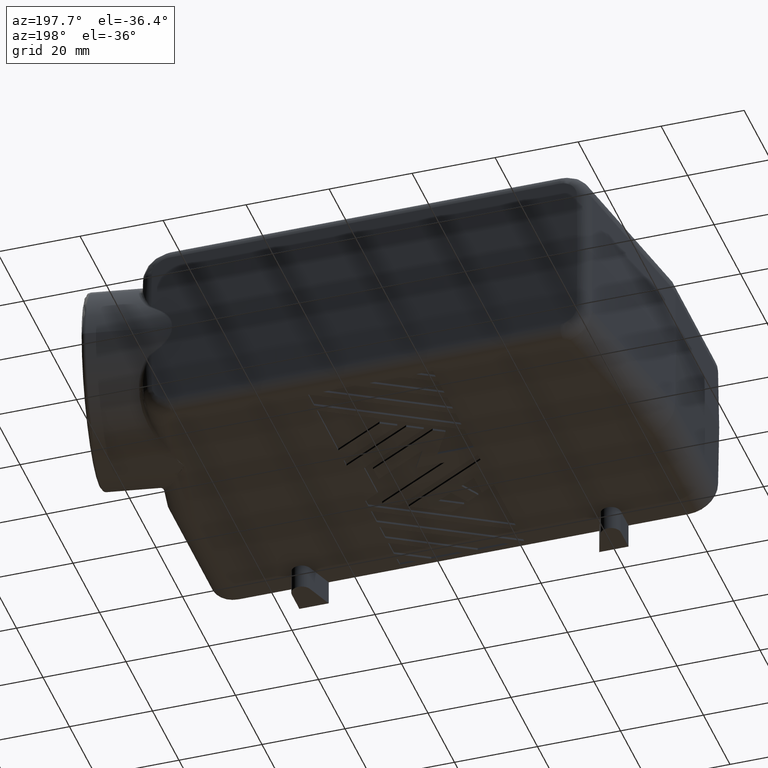
[diagram: clean part render]
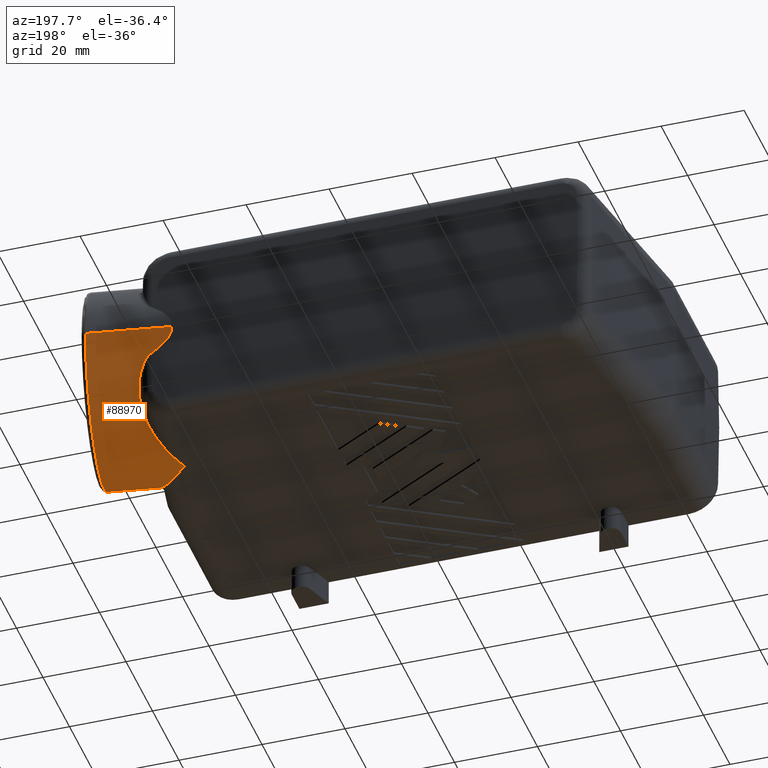
[diagram: same view with one face highlighted and labeled with its STEP entity id]
A machine part, auxiliary view. The second image highlights one B-rep face of the part: STEP entity #88970.
In plain terms, the highlighted cylindrical surface (partial cylindrical patch) has radius 23 mm, axis along (0.9848, 0.1736, -0).
Its self-contained STEP definition (entity closure, byte-faithful):
#2460=CARTESIAN_POINT('',(-53.2589778486338,76.9878897211014,23.));
#2470=VERTEX_POINT('',#2460);
#13630=CARTESIAN_POINT('',(-68.7677861782095,103.077323141614,
-1.77621654271337E-14));
#13640=VERTEX_POINT('',#13630);
#13850=CARTESIAN_POINT('',(-76.7556023508883,57.7761665030523,
-1.77621654271337E-14));
#13860=VERTEX_POINT('',#13850);
#13890=CARTESIAN_POINT('',(-72.7616942645489,80.4267448223331,
-1.77621654271337E-14));
#13900=DIRECTION('',(-0.984807753012208,0.17364817766693,
-1.40296686880216E-18));
#13910=DIRECTION('',(0.17364817766693,0.984807753012208,0.));
#13920=AXIS2_PLACEMENT_3D('',#13890,#13900,#13910);
#13930=CIRCLE('',#13920,23.);
#15860=CARTESIAN_POINT('',(-58.0076909270538,96.2610731268832,
14.1197674051149));
#15870=VERTEX_POINT('',#15860);
#15960=CARTESIAN_POINT('',(-58.1803025286342,95.1408176819553,
15.4671353611935));
#15970=VERTEX_POINT('',#15960);
#16000=CARTESIAN_POINT('',(-58.1803025286342,95.1408176819553,
15.4671353611935));
#16010=CARTESIAN_POINT('',(-58.1755556640412,95.1712988825403,
15.4331913327418));
#16020=CARTESIAN_POINT('',(-58.1708280899382,95.2016803336105,
15.3991551228733));
#16030=CARTESIAN_POINT('',(-58.1329420516652,95.4453477368436,
15.1245344146121));
#16040=CARTESIAN_POINT('',(-58.1007185510835,95.6538046660801,
14.8794362819045));
#16050=CARTESIAN_POINT('',(-58.0694727912256,95.8571834528169,
14.6298868183711));
#16060=CARTESIAN_POINT('',(-58.0528538532126,95.9653561925843,
14.497156902872));
#16070=CARTESIAN_POINT('',(-58.0365213160347,96.0720285390109,
14.363246070703));
#16080=CARTESIAN_POINT('',(-58.0161950444846,96.2052531721592,
14.1921277968182));
#16090=CARTESIAN_POINT('',(-58.0119329235728,96.2332161759278,
14.1559900026203));
#16100=CARTESIAN_POINT('',(-58.0076909270538,96.2610731268832,
14.1197674051149));
#16110=B_SPLINE_CURVE_WITH_KNOTS('',3,(#16000,#16010,#16020,#16030,
#16040,#16050,#16060,#16070,#16080,#16090,#16100),.UNSPECIFIED.,.F.,.F.,
(4,2,3,2,4),(0.,0.140603038316231,1.13140705707454,1.6583940993297,
1.79906701491413),.UNSPECIFIED.);
#16120=EDGE_CURVE('',#15970,#15870,#16110,.T.);
#20020=CARTESIAN_POINT('',(-49.134466960062,99.6154392425925,
-1.49175079682811E-14));
#20030=VERTEX_POINT('',#20020);
#20760=CARTESIAN_POINT('',(-54.2137318525131,99.5370902496345,
6.572787771043));
#20770=VERTEX_POINT('',#20760);
#20800=CARTESIAN_POINT('',(-54.2137318525131,99.5370902496345,
6.572787771043));
#20810=CARTESIAN_POINT('',(-54.2045951508678,99.5371197658751,
6.567369971941));
#20820=CARTESIAN_POINT('',(-54.195461626037,99.5371492818426,
6.56194693044178));
#20830=CARTESIAN_POINT('',(-54.1663703294016,99.5372440816092,
6.5446471748836));
#20840=CARTESIAN_POINT('',(-54.1464258071583,99.5373097251428,
6.53274953082441));
#20850=CARTESIAN_POINT('',(-53.9239454434969,99.5380493262839,
6.39961122005311));
#20860=CARTESIAN_POINT('',(-53.7231781118138,99.5387847841503,
6.27557356441709));
#20870=CARTESIAN_POINT('',(-53.425193479884,99.5399937351857,
6.08475802342332));
#20880=CARTESIAN_POINT('',(-53.326442088518,99.5404141569782,
6.0203905361106));
#20890=CARTESIAN_POINT('',(-53.1301207583232,99.541292568968,
5.8899882589827));
#20900=CARTESIAN_POINT('',(-53.0325554197674,99.5417505269774,
5.823957189201));
#20910=CARTESIAN_POINT('',(-52.8088660352698,99.5428538971029,
5.66951121064567));
#20920=CARTESIAN_POINT('',(-52.6831857527509,99.5435136550333,
5.58045661419578));
#20930=CARTESIAN_POINT('',(-52.4344002077649,99.5449082318631,
5.39910374596789));
#20940=CARTESIAN_POINT('',(-52.3112933012332,99.5456430012213,
5.30680763773336));
#20950=CARTESIAN_POINT('',(-52.068042608875,99.5471948607132,
5.11871478289614));
#20960=CARTESIAN_POINT('',(-51.9479009009342,99.5480118516551,
5.02292456005918));
#20970=CARTESIAN_POINT('',(-51.7110169045742,99.5497365655707,
4.8275403047912));
#20980=CARTESIAN_POINT('',(-51.5942782709468,99.5506441703952,
4.72795452456326));
#20990=CARTESIAN_POINT('',(-51.3650038993593,99.5525574224133,
4.52488886259978));
#21000=CARTESIAN_POINT('',(-51.2524650655694,99.5535626844292,
4.42142975616982));
#21010=CARTESIAN_POINT('',(-51.0319827825058,99.5556834648628,
4.2100787995806));
#21020=CARTESIAN_POINT('',(-50.9240469832142,99.5567987579748,
4.10220296379059));
#21030=CARTESIAN_POINT('',(-50.7136210421186,99.5591508517711,
3.88172187312598));
#21040=CARTESIAN_POINT('',(-50.6111398241775,99.5603872808129,
3.76914152575784));
#21050=CARTESIAN_POINT('',(-50.4125547586954,99.5629948205667,
3.53887795607299));
#21060=CARTESIAN_POINT('',(-50.3164752977206,99.5643653330109,
3.42123892039751));
#21070=CARTESIAN_POINT('',(-50.1583281263639,99.5668405242984,
3.21505541861682));
#21080=CARTESIAN_POINT('',(-50.094470178167,99.567907572238,
3.12793331498348));
#21090=CARTESIAN_POINT('',(-49.9710856392908,99.5701219788586,
2.95086201432337));
#21100=CARTESIAN_POINT('',(-49.9115750451986,99.5712689187774,
2.86094330791857));
#21110=CARTESIAN_POINT('',(-49.797471486379,99.5736471720079,
2.67828567027707));
#21120=CARTESIAN_POINT('',(-49.7428899397325,99.574878008236,
2.58557869782098));
#21130=CARTESIAN_POINT('',(-49.6392295836796,99.5774284800035,
2.39733013518454));
#21140=CARTESIAN_POINT('',(-49.5901665551613,99.5787475191213,
2.30182911318935));
#21150=CARTESIAN_POINT('',(-49.4983614037783,99.581472450942,
2.10843777090661));
#21160=CARTESIAN_POINT('',(-49.4556150523486,99.582877217512,
2.010610159487));
#21170=CARTESIAN_POINT('',(-49.3768884718914,99.5857794765713,
1.81241137948107));
#21180=CARTESIAN_POINT('',(-49.3409279948156,99.5872759601092,
1.7121060040951));
#21190=CARTESIAN_POINT('',(-49.2764288467397,99.5903604625717,
1.50928747584064));
#21200=CARTESIAN_POINT('',(-49.2479069216512,99.5919471676321,
1.40685633554321));
#21210=CARTESIAN_POINT('',(-49.198840487644,99.5952096603309,
1.20015343075822));
#21220=CARTESIAN_POINT('',(-49.1783144610978,99.5968838547437,
1.09598037219582));
#21230=CARTESIAN_POINT('',(-49.150451739032,99.5998153206579,
0.91687382577241));
#21240=CARTESIAN_POINT('',(-49.1410216377573,99.601050659057,
0.842340746140659));
#21250=CARTESIAN_POINT('',(-49.1265038837736,99.6035599445454,
0.692838128247092));
#21260=CARTESIAN_POINT('',(-49.1214199063237,99.604833139234,
0.61791314112667));
#21270=CARTESIAN_POINT('',(-49.1156576607495,99.6074143996566,
0.467866392749873));
#21280=CARTESIAN_POINT('',(-49.1149805899223,99.6087217299498,
0.392787200682886));
#21290=CARTESIAN_POINT('',(-49.1180400926312,99.61136718968,
0.242668267595216));
#21300=CARTESIAN_POINT('',(-49.1217760116165,99.6127045682629,
0.167671221735505));
#21310=CARTESIAN_POINT('',(-49.1286086776652,99.614263435047,
0.0812652065582647));
#21320=CARTESIAN_POINT('',(-49.1295742500518,99.6144721738511,
0.0697157545097839));
#21330=CARTESIAN_POINT('',(-49.1312829410085,99.6148232493122,
0.0503254382974118));
#21340=CARTESIAN_POINT('',(-49.1317725853841,99.6149300148373,
0.0406170660819623));
#21350=CARTESIAN_POINT('',(-49.1328856857824,99.6151536152214,
0.0202887279797526));
#21360=CARTESIAN_POINT('',(-49.13350915834,99.6152703563067,
0.00966876196691699));
#21370=CARTESIAN_POINT('',(-49.134466960062,99.6154392425925,
5.65808548175789E-14));
#21380=B_SPLINE_CURVE_WITH_KNOTS('',3,(#20800,#20810,#20820,#20830,
#20840,#20850,#20860,#20870,#20880,#20890,#20900,#20910,#20920,#20930,
#20940,#20950,#20960,#20970,#20980,#20990,#21000,#21010,#21020,#21030,
#21040,#21050,#21060,#21070,#21080,#21090,#21100,#21110,#21120,#21130,
#21140,#21150,#21160,#21170,#21180,#21190,#21200,#21210,#21220,#21230,
#21240,#21250,#21260,#21270,#21280,#21290,#21300,#21310,#21320,#21330,
#21340,#21350,#21360,#21370),.UNSPECIFIED.,.F.,.F.,(4,2,2,2,2,2,2,2,2,2,
2,2,2,2,2,2,2,2,2,2,2,2,2,2,2,2,2,2,4),(0.,0.0320664803184047,
0.102175493354466,0.814800766528805,1.17093527256056,1.52694836930753,
1.9926121511299,2.45801876153764,2.92306928252492,3.38779178680959,
3.85111516193131,4.31401824882963,4.77625569942809,5.2379561072481,
5.56667529130568,5.89508142446432,6.22304420175636,6.55066900062438,
6.8767521950454,7.20251474911699,7.52784604893445,7.85294013350769,
8.08310527471993,8.31321908078353,8.54330734315265,8.77340867089052,
8.80892625608746,8.83306334050749,8.85720042492753),.UNSPECIFIED.);
#21390=EDGE_CURVE('',#20770,#20030,#21380,.T.);
#25150=CARTESIAN_POINT('',(-54.2137318525131,99.5370902496345,
6.572787771043));
#25160=CARTESIAN_POINT('',(-54.2237464428965,99.5370578744527,
6.57872620836337));
#25170=CARTESIAN_POINT('',(-54.233721513801,99.5369866990914,
6.58476094256286));
#25180=CARTESIAN_POINT('',(-54.2476941228409,99.5368333880463,
6.59337773746341));
#25190=CARTESIAN_POINT('',(-54.2517593894687,99.5367823348004,
6.59590441595224));
#25200=CARTESIAN_POINT('',(-54.2920971737428,99.5362125426558,
6.62116745704355));
#25210=CARTESIAN_POINT('',(-54.3274622063541,99.5352028610683,
6.64486531757414));
#25220=CARTESIAN_POINT('',(-54.3970866595034,99.5322990692841,
6.69420622960896));
#25230=CARTESIAN_POINT('',(-54.4312740377867,99.5303952681952,
6.71983557401372));
#25240=CARTESIAN_POINT('',(-54.4983902470726,99.5257972399824,
6.77258185081122));
#25250=CARTESIAN_POINT('',(-54.5312655564636,99.5231015033806,
6.79967150151992));
#25260=CARTESIAN_POINT('',(-54.5958721007407,99.5169991008277,
6.85509525801745));
#25270=CARTESIAN_POINT('',(-54.6275585194362,99.5135922106855,
6.88340318865219));
#25280=CARTESIAN_POINT('',(-54.689870943836,99.5061355617444,
6.94104866946194));
#25290=CARTESIAN_POINT('',(-54.7204544905477,99.5020877504459,
6.97035527718056));
#25300=CARTESIAN_POINT('',(-54.7746029665499,99.4942777246913,
7.02385683517983));
#25310=CARTESIAN_POINT('',(-54.7983191015022,99.4906235050615,
7.04787575527019));
#25320=CARTESIAN_POINT('',(-54.8451834271883,99.4829629936062,
7.09640621205847));
#25330=CARTESIAN_POINT('',(-54.8683285139652,99.4789556844056,
7.12091826843099));
#25340=CARTESIAN_POINT('',(-54.9369301655001,99.4664438459224,
7.19506295312955));
#25350=CARTESIAN_POINT('',(-54.9815550202648,99.4574456945391,
7.24531214098616));
#25360=CARTESIAN_POINT('',(-55.0688961712048,99.4382765767953,
7.34708997636612));
#25370=CARTESIAN_POINT('',(-55.111590151141,99.4281052320199,
7.39860489816682));
#25380=CARTESIAN_POINT('',(-55.1953451719877,99.4066804366091,
7.50270264623156));
#25390=CARTESIAN_POINT('',(-55.2363623015525,99.3954336399605,
7.55524093755316));
#25400=CARTESIAN_POINT('',(-55.3170029042188,99.3719186044883,
7.66125678949536));
#25410=CARTESIAN_POINT('',(-55.3565914215697,99.3596548865802,
7.71469984381721));
#25420=CARTESIAN_POINT('',(-55.4344553182623,99.3341824838206,
7.82228427542487));
#25430=CARTESIAN_POINT('',(-55.4727059048873,99.3209792280932,
7.87639663652756));
#25440=CARTESIAN_POINT('',(-55.5480181153179,99.2936749569978,
7.98519717081747));
#25450=CARTESIAN_POINT('',(-55.5850604769652,99.2795787267244,
8.03986156968632));
#25460=CARTESIAN_POINT('',(-55.6580532193639,99.2505276968038,
8.14966109619156));
#25470=CARTESIAN_POINT('',(-55.6939886034986,99.2355772101535,
8.20477657074127));
#25480=CARTESIAN_POINT('',(-55.7649996772033,99.2047833712306,
8.31563005997756));
#25490=CARTESIAN_POINT('',(-55.8000590669351,99.188940408912,
8.37135314727601));
#25500=CARTESIAN_POINT('',(-55.8692293882984,99.1564442938954,
8.48312389493579));
#25510=CARTESIAN_POINT('',(-55.9033305351734,99.1397946775188,
8.53915743774379));
#25520=CARTESIAN_POINT('',(-55.9706426189155,99.105704753159,
8.65149436915301));
#25530=CARTESIAN_POINT('',(-56.0038454416215,99.0882676773484,
8.70778555547642));
#25540=CARTESIAN_POINT('',(-56.0694072950024,99.0526193074585,
8.82058906131808));
#25550=CARTESIAN_POINT('',(-56.1017595879111,99.0344110048478,
8.87709077909746));
#25560=CARTESIAN_POINT('',(-56.1656634211565,98.9972307062723,
8.99028246150006));
#25570=CARTESIAN_POINT('',(-56.197209172755,98.9782613889506,
9.04696313677835));
#25580=CARTESIAN_POINT('',(-56.2595271046503,98.9395717832241,
9.16047042255246));
#25590=CARTESIAN_POINT('',(-56.2902983834804,98.9198514933021,
9.21729614816214));
#25600=CARTESIAN_POINT('',(-56.3814749527106,98.8595867287282,
9.38791830960036));
#25610=CARTESIAN_POINT('',(-56.4407556341413,98.8179312927855,
9.50187891227912));
#25620=CARTESIAN_POINT('',(-56.4986092488757,98.7748184283313,
9.61595877381155));
#25630=CARTESIAN_POINT('',(-56.5471538284539,98.7386427133143,
9.71168241946176));
#25640=CARTESIAN_POINT('',(-56.5946772473931,98.7014525171326,
9.80745961777733));
#25650=CARTESIAN_POINT('',(-56.6877779443977,98.6250251137175,
9.99911656191115));
#25660=CARTESIAN_POINT('',(-56.7333403299056,98.5857998470985,
10.0949662413424));
#25670=CARTESIAN_POINT('',(-56.8225347380523,98.5053158069968,
10.2866733331958));
#25680=CARTESIAN_POINT('',(-56.8661560245958,98.4640671849254,
10.3825073513289));
#25690=CARTESIAN_POINT('',(-56.951465511865,98.3795417575417,
10.5741056925728));
#25700=CARTESIAN_POINT('',(-56.9931441728862,98.3362754913567,
10.669847548952));
#25710=CARTESIAN_POINT('',(-57.0924290882428,98.2282609382488,
10.9032265574));
#25720=CARTESIAN_POINT('',(-57.1489794554674,98.162440813192,
11.0407619927098));
#25730=CARTESIAN_POINT('',(-57.2579067151371,98.026588094167,
11.3153607675506));
#25740=CARTESIAN_POINT('',(-57.3102641834495,97.9565873344877,
11.4523673346738));
#25750=CARTESIAN_POINT('',(-57.4106062355354,97.8123634795238,
11.7257194590359));
#25760=CARTESIAN_POINT('',(-57.4585734539529,97.7381767955495,
11.8620055615176));
#25770=CARTESIAN_POINT('',(-57.5498761663186,97.5855651340981,
12.1337401763622));
#25780=CARTESIAN_POINT('',(-57.5931965517253,97.5071805185981,
12.2691273528273));
#25790=CARTESIAN_POINT('',(-57.6748422001189,97.3462409727198,
12.5387477259964));
#25800=CARTESIAN_POINT('',(-57.7131660150266,97.2637201402572,
12.6729417990719));
#25810=CARTESIAN_POINT('',(-57.7666521319809,97.1367575172289,
12.873321459971));
#25820=CARTESIAN_POINT('',(-57.7838087072385,97.0939233311724,
12.9399384258006));
#25830=CARTESIAN_POINT('',(-57.8167255893021,97.007217440822,
13.0728105155595));
#25840=CARTESIAN_POINT('',(-57.8324873387054,96.9633468623835,
13.1390659445235));
#25850=CARTESIAN_POINT('',(-57.8625579055652,96.8745682938342,
13.2711932086471));
#25860=CARTESIAN_POINT('',(-57.8768661223608,96.829668176021,
13.3370555217855));
#25870=CARTESIAN_POINT('',(-57.9039693886545,96.7388289006954,
13.4683780086027));
#25880=CARTESIAN_POINT('',(-57.9167638314353,96.6928980704717,
13.5338280905411));
#25890=CARTESIAN_POINT('',(-57.9407712147134,96.6000065508381,
13.6642921648335));
#25900=CARTESIAN_POINT('',(-57.9519838809345,96.5530549315781,
13.7292955106995));
#25910=CARTESIAN_POINT('',(-57.9727552728424,96.4581313215432,
13.8588332153876));
#25920=CARTESIAN_POINT('',(-57.982313050189,96.4101746463164,
13.9233490349929));
#25930=CARTESIAN_POINT('',(-57.9969831685328,96.3283844119499,
14.0318109448677));
#25940=CARTESIAN_POINT('',(-58.0025490146665,96.2948400817528,
14.075859996653));
#25950=CARTESIAN_POINT('',(-58.0076909270538,96.2610731268832,
14.1197674051149));
#25960=B_SPLINE_CURVE_WITH_KNOTS('',3,(#25150,#25160,#25170,#25180,
#25190,#25200,#25210,#25220,#25230,#25240,#25250,#25260,#25270,#25280,
#25290,#25300,#25310,#25320,#25330,#25340,#25350,#25360,#25370,#25380,
#25390,#25400,#25410,#25420,#25430,#25440,#25450,#25460,#25470,#25480,
#25490,#25500,#25510,#25520,#25530,#25540,#25550,#25560,#25570,#25580,
#25590,#25600,#25610,#25620,#25630,#25640,#25650,#25660,#25670,#25680,
#25690,#25700,#25710,#25720,#25730,#25740,#25750,#25760,#25770,#25780,
#25790,#25800,#25810,#25820,#25830,#25840,#25850,#25860,#25870,#25880,
#25890,#25900,#25910,#25920,#25930,#25940,#25950),.UNSPECIFIED.,.F.,.F.,
(4,2,2,2,2,2,2,2,2,2,2,2,2,2,2,2,2,2,2,2,2,2,2,3,2,2,2,2,2,2,2,2,2,2,2,2
,2,2,2,4),(0.,0.0318983864812067,0.0450369668041404,0.162613138624689,
0.281769521064327,0.401603755287638,0.522060285923196,0.643004674924544,
0.739920174908583,0.837068138177919,1.03197403981272,1.22760375793058,
1.42375514912843,1.62062777490049,1.81784041243273,2.01534501181894,
2.21307542392519,2.41182611413815,2.61072801399276,2.80975681805784,
3.00888310113035,3.20811209485063,3.40739897940175,3.80609149411399,
4.14114916501956,4.47619422734725,4.81118078604414,5.14606502538042,
5.62790231249951,6.10933817612035,6.59024017711442,7.07053618812111,
7.54967764498166,7.78894309946179,8.02799296107081,8.26677040409999,
8.50530343493725,8.74357094157551,8.98156275711322,9.14491251832902),
.UNSPECIFIED.);
#25970=EDGE_CURVE('',#20770,#15870,#25960,.T.);
#34550=CARTESIAN_POINT('',(-58.1803025286342,95.1408176819553,
15.4671353611935));
#34560=CARTESIAN_POINT('',(-58.1852148420184,95.1092741732039,
15.5022623845053));
#34570=CARTESIAN_POINT('',(-58.1899001428949,95.0775762389617,
15.5372948205844));
#34580=CARTESIAN_POINT('',(-58.2000601026074,95.0050550378824,
15.6168431720516));
#34590=CARTESIAN_POINT('',(-58.2053930863999,94.9641373401398,
15.6612960201117));
#34600=CARTESIAN_POINT('',(-58.2200809966801,94.8426527520402,
15.7920222640847));
#34610=CARTESIAN_POINT('',(-58.2284241164954,94.7614732603526,
15.8777661904556));
#34620=CARTESIAN_POINT('',(-58.2425007863698,94.5974222042423,
16.0478914955129));
#34630=CARTESIAN_POINT('',(-58.2482304795286,94.5145623041902,
16.1322575683054));
#34640=CARTESIAN_POINT('',(-58.2571902742224,94.3472371535759,
16.2995712854569));
#34650=CARTESIAN_POINT('',(-58.2604172315178,94.2627832026899,
16.3825046834562));
#34660=CARTESIAN_POINT('',(-58.2644796049672,94.0923267950343,
16.5469309230794));
#34670=CARTESIAN_POINT('',(-58.265311764359,94.0063348009791,
16.6284100596493));
#34680=CARTESIAN_POINT('',(-58.2646870199404,93.8329021536793,
16.7898662510548));
#34690=CARTESIAN_POINT('',(-58.26322801335,93.7454719407884,
16.8698309358646));
#34700=CARTESIAN_POINT('',(-58.2581218264049,93.5692340087393,
17.0282287948454));
#34710=CARTESIAN_POINT('',(-58.254472917052,93.4804362623473,
17.1066504245564));
#34720=CARTESIAN_POINT('',(-58.2450842992084,93.3015356136755,
17.261934048236));
#34730=CARTESIAN_POINT('',(-58.2393428988877,93.2114368843397,
17.3387898932644));
#34740=CARTESIAN_POINT('',(-58.2228425635549,92.989344870486,
17.525010497793));
#34750=CARTESIAN_POINT('',(-58.2109877187281,92.8567099483029,
17.6334715486901));
#34760=CARTESIAN_POINT('',(-58.1833650943573,92.5890428801144,
17.8470264318338));
#34770=CARTESIAN_POINT('',(-58.1675949299196,92.4540277568757,
17.9521008218709));
#34780=CARTESIAN_POINT('',(-58.1323942954336,92.181751301731,
18.1588714376555));
#34790=CARTESIAN_POINT('',(-58.1129628985738,92.0445140989808,
18.260543341535));
#34800=CARTESIAN_POINT('',(-58.0706799867001,91.7679645760211,
18.4604843502708));
#34810=CARTESIAN_POINT('',(-58.0478285599803,91.6286748878241,
18.5587318640715));
#34820=CARTESIAN_POINT('',(-57.99892017608,91.3481133244292,
18.7518569721654));
#34830=CARTESIAN_POINT('',(-57.972862632151,91.206861831516,
18.8467137760647));
#34840=CARTESIAN_POINT('',(-57.9177604168214,90.9225735176388,
19.033016089101));
#34850=CARTESIAN_POINT('',(-57.888716995417,90.7795564448554,
19.1244442729052));
#34860=CARTESIAN_POINT('',(-57.8278393780953,90.4918611195713,
19.3039015238158));
#34870=CARTESIAN_POINT('',(-57.7960067348264,90.34720127104,
19.3919149348997));
#34880=CARTESIAN_POINT('',(-57.7297365365908,90.0563454810293,
19.5645535194442));
#34890=CARTESIAN_POINT('',(-57.695300945863,89.9101667821788,
19.6491647891914));
#34900=CARTESIAN_POINT('',(-57.6239176641791,89.6160530944475,
19.8152049053699));
#34910=CARTESIAN_POINT('',(-57.5869667514265,89.4681313053535,
19.8966135112229));
#34920=CARTESIAN_POINT('',(-57.5107855648154,89.1709596395444,
20.0560685111312));
#34930=CARTESIAN_POINT('',(-57.4715576960797,89.021725005322,
20.1341036373736));
#34940=CARTESIAN_POINT('',(-57.3909746793142,88.7220198442612,
20.2868384186107));
#34950=CARTESIAN_POINT('',(-57.3496220295776,88.571563641365,
20.3615278492158));
#34960=CARTESIAN_POINT('',(-57.2649339869688,88.2695081185459,
20.507595712724));
#34970=CARTESIAN_POINT('',(-57.2216012431036,88.1179223079954,
20.5789650269052));
#34980=CARTESIAN_POINT('',(-57.1330798641767,87.8136627424568,
20.7184329839026));
#34990=CARTESIAN_POINT('',(-57.0878936151657,87.6610015553031,
20.7865228124106));
#35000=CARTESIAN_POINT('',(-56.9957995750534,87.3546958483383,
20.9194461013808));
#35010=CARTESIAN_POINT('',(-56.9488945479282,87.2010633801437,
20.9842721668096));
#35020=CARTESIAN_POINT('',(-56.8534817362199,86.8928846890283,
21.1106973318222));
#35030=CARTESIAN_POINT('',(-56.8049767161804,86.7383498716458,
21.1722897127597));
#35040=CARTESIAN_POINT('',(-56.7064774563815,86.4284364362969,
21.2922745233484));
#35050=CARTESIAN_POINT('',(-56.6564856669148,86.2730675808754,
21.3506613383585));
#35060=CARTESIAN_POINT('',(-56.5456530502601,85.9324570969564,
21.4748717354328));
#35070=CARTESIAN_POINT('',(-56.4845376509191,85.747081957886,
21.5400358626088));
#35080=CARTESIAN_POINT('',(-56.3605280593171,85.3753314227942,
21.6659419628176));
#35090=CARTESIAN_POINT('',(-56.2976380188702,85.1889708001409,
21.7266764831912));
#35100=CARTESIAN_POINT('',(-56.1702347455819,84.8153349054518,
21.8437684157382));
#35110=CARTESIAN_POINT('',(-56.1057261085168,84.6280751073085,
21.900118665159));
#35120=CARTESIAN_POINT('',(-55.975235423528,84.2527301148122,
22.008481561299));
#35130=CARTESIAN_POINT('',(-55.9092579607164,84.0646596751497,
22.0604879535788));
#35140=CARTESIAN_POINT('',(-55.775961916491,83.6877504015335,
22.160207629757));
#35150=CARTESIAN_POINT('',(-55.7086477129189,83.4989255914803,
22.2079148609999));
#35160=CARTESIAN_POINT('',(-55.5728197451572,83.1206069757528,
22.2990644763541));
#35170=CARTESIAN_POINT('',(-55.5043104767248,82.9311267083239,
22.3425020197457));
#35180=CARTESIAN_POINT('',(-55.3662188261894,82.5515669504611,
22.425145473097));
#35190=CARTESIAN_POINT('',(-55.2966408816989,82.3615004907752,
22.4643471052241));
#35200=CARTESIAN_POINT('',(-55.1565341939512,81.9808385341869,
22.5385480384929));
#35210=CARTESIAN_POINT('',(-55.0860098527455,81.7902556328666,
22.5735436625207));
#35220=CARTESIAN_POINT('',(-54.9440720414594,81.4084777453942,
22.6393849211836));
#35230=CARTESIAN_POINT('',(-54.8726623019716,81.2172946668876,
22.6702241371724));
#35240=CARTESIAN_POINT('',(-54.729120189918,80.8345261868064,
22.7277443366013));
#35250=CARTESIAN_POINT('',(-54.6569921456456,80.6429527014589,
22.7544226183043));
#35260=CARTESIAN_POINT('',(-54.512122125775,80.2594623971388,
22.8036417124747));
#35270=CARTESIAN_POINT('',(-54.4393844402783,80.0675572195202,
22.8261802398616));
#35280=CARTESIAN_POINT('',(-54.2934016231726,79.6834627699905,
22.8671370751123));
#35290=CARTESIAN_POINT('',(-54.2201607540175,79.4912849125303,
22.8855535363842));
#35300=CARTESIAN_POINT('',(-54.073269757536,79.1066875217697,
22.9182816726646));
#35310=CARTESIAN_POINT('',(-53.999623838384,78.9142792059283,
22.9325915928058));
#35320=CARTESIAN_POINT('',(-53.8520297107779,78.5292902691364,
22.9571158521211));
#35330=CARTESIAN_POINT('',(-53.778085719336,78.3367207405511,
22.967329115244));
#35340=CARTESIAN_POINT('',(-53.6299947595391,77.9514614746543,
22.983667928213));
#35350=CARTESIAN_POINT('',(-53.5558519913596,77.7587827293966,
22.9897927197197));
#35360=CARTESIAN_POINT('',(-53.4074633346135,77.3733604264045,
22.997958938039));
#35370=CARTESIAN_POINT('',(-53.333210293984,77.1806321719317,23.));
#35380=CARTESIAN_POINT('',(-53.2589778486338,76.9878897211014,23.));
#35390=B_SPLINE_CURVE_WITH_KNOTS('',3,(#34550,#34560,#34570,#34580,
#34590,#34600,#34610,#34620,#34630,#34640,#34650,#34660,#34670,#34680,
#34690,#34700,#34710,#34720,#34730,#34740,#34750,#34760,#34770,#34780,
#34790,#34800,#34810,#34820,#34830,#34840,#34850,#34860,#34870,#34880,
#34890,#34900,#34910,#34920,#34930,#34940,#34950,#34960,#34970,#34980,
#34990,#35000,#35010,#35020,#35030,#35040,#35050,#35060,#35070,#35080,
#35090,#35100,#35110,#35120,#35130,#35140,#35150,#35160,#35170,#35180,
#35190,#35200,#35210,#35220,#35230,#35240,#35250,#35260,#35270,#35280,
#35290,#35300,#35310,#35320,#35330,#35340,#35350,#35360,#35370,#35380),
.UNSPECIFIED.,.F.,.F.,(4,2,2,2,2,2,2,2,2,2,2,2,2,2,2,2,2,2,2,2,2,2,2,2,2
,2,2,2,2,2,2,2,2,2,2,2,2,2,2,2,2,4),(0.,0.140814557606684,
0.320824800824475,0.672372909860204,1.02428551267701,1.37654338126548,
1.72923677112984,2.08225981295377,2.43561331248116,2.78927874624894,
3.30191604149666,3.81516140801908,4.32901499575545,4.84341850093597,
5.35855764382548,5.87419059901708,6.3903094733233,6.9068687850712,
7.42500855619794,7.94354089705375,8.46245519387539,8.98171617716594,
9.5013970617999,10.0213827320847,10.541662116799,11.0622078719219,
11.6802668262519,12.2986474788518,12.9173334764103,13.5362878406959,
14.1555633666033,14.7750586555035,15.394757474959,16.0146312070442,
16.6351396656779,17.2557813897022,17.8765398754921,18.4973919720448,
19.1183640853564,19.7393917497081,20.360463536464,20.9815554695802),
.UNSPECIFIED.);
#35400=EDGE_CURVE('',#15970,#2470,#35390,.T.);
#73370=CARTESIAN_POINT('',(-65.0727026539394,55.7161560735696,
-1.77455218526328E-14));
#73380=VERTEX_POINT('',#73370);
#87430=CARTESIAN_POINT('',(-73.7465020175611,80.6003930000001,
-1.77635683940025E-14));
#87440=DIRECTION('',(-0.984807753012208,0.17364817766693,
-1.40296686880216E-18));
#87450=DIRECTION('',(-0.17364817766693,-0.984807753012208,0.));
#87460=AXIS2_PLACEMENT_3D('',#87430,#87440,#87450);
#87470=CYLINDRICAL_SURFACE('',#87460,23.);
#87480=ORIENTED_EDGE('',*,*,#25970,.F.);
#87490=ORIENTED_EDGE('',*,*,#16120,.T.);
#87500=ORIENTED_EDGE('',*,*,#35400,.F.);
#87510=CARTESIAN_POINT('',(-53.2589778486338,76.9878897211014,23.));
#87520=CARTESIAN_POINT('',(-53.3946553304101,76.8321600539421,23.));
#87530=CARTESIAN_POINT('',(-53.5303473099743,76.6764507710002,
22.9979589380392));
#87540=CARTESIAN_POINT('',(-53.801609227037,76.3650241866405,
22.9897927197199));
#87550=CARTESIAN_POINT('',(-53.9371806512363,76.2093237117533,
22.983667928214));
#87560=CARTESIAN_POINT('',(-54.208107062702,75.8979485137957,
22.967329115245));
#87570=CARTESIAN_POINT('',(-54.343454343557,75.7422826833716,
22.9571158521245));
#87580=CARTESIAN_POINT('',(-54.6138214274801,75.430991585062,
22.9325915928092));
#87590=CARTESIAN_POINT('',(-54.7488334739881,75.275375298348,
22.918281672673));
#87600=CARTESIAN_POINT('',(-55.0184059141523,74.9642116479466,
22.8855535363926));
#87610=CARTESIAN_POINT('',(-55.1529585167478,74.8086733860274,
22.8671370751293));
#87620=CARTESIAN_POINT('',(-55.4215055314223,74.4976717301491,
22.8261802398786));
#87630=CARTESIAN_POINT('',(-55.5554920340361,74.3422176045329,
22.8036417125053));
#87640=CARTESIAN_POINT('',(-55.822786731529,74.0314030603802,
22.7544226183349));
#87650=CARTESIAN_POINT('',(-55.9560869133306,73.8760521139822,
22.7277443366522));
#87660=CARTESIAN_POINT('',(-56.2218869072172,73.5654616915184,
22.6702241372233));
#87670=CARTESIAN_POINT('',(-56.3543785762926,73.4102319328635,
22.6393849212637));
#87680=CARTESIAN_POINT('',(-56.6183322179608,73.1000236597856,
22.5735436626007));
#87690=CARTESIAN_POINT('',(-56.7497866120964,72.9450550591823,
22.5385480386139));
#87700=CARTESIAN_POINT('',(-57.0116378896466,72.6352691369867,
22.464347105345));
#87710=CARTESIAN_POINT('',(-57.1420263283061,72.4804621460677,
22.4251454732745));
#87720=CARTESIAN_POINT('',(-57.4016071160912,72.171022768565,
22.3425020199233));
#87730=CARTESIAN_POINT('',(-57.5307908381554,72.0164011094848,
22.2990644766089));
#87740=CARTESIAN_POINT('',(-57.7878199643314,71.7073537989811,
22.2079148612546));
#87750=CARTESIAN_POINT('',(-57.9156565131033,71.5529393321537,
22.160207630116));
#87760=CARTESIAN_POINT('',(-58.1698243860251,71.2443504011813,
22.0604879539378));
#87770=CARTESIAN_POINT('',(-58.2961467994552,71.090187618437,
22.0084815617979));
#87780=CARTESIAN_POINT('',(-58.5471434813508,70.7821091415217,
21.9001186656578));
#87790=CARTESIAN_POINT('',(-58.6718083942834,70.6282057447147,
21.8437684164241));
#87800=CARTESIAN_POINT('',(-58.9193193123098,70.3206773374047,
21.7266764838771));
#87810=CARTESIAN_POINT('',(-59.0421557057486,70.167065296618,
21.6659419637528));
#87820=CARTESIAN_POINT('',(-59.2858327751772,69.8601478403125,
21.5400358635439));
#87830=CARTESIAN_POINT('',(-59.4066644965184,69.7068548878171,
21.474871736491));
#87840=CARTESIAN_POINT('',(-59.6273087353565,69.4246927165695,
21.3506613392494));
#87850=CARTESIAN_POINT('',(-59.7274249291905,69.2957919486928,
21.2922745243213));
#87860=CARTESIAN_POINT('',(-59.9259805943557,69.0382573113634,
21.1722897137309));
#87870=CARTESIAN_POINT('',(-60.0244144238328,68.9096317781682,
21.1106973330682));
#87880=CARTESIAN_POINT('',(-60.2194764590312,68.6526716397758,
20.9842721680538));
#87890=CARTESIAN_POINT('',(-60.3160981653164,68.5243468077444,
20.9194461029745));
#87900=CARTESIAN_POINT('',(-60.5074009770281,68.2680116120003,
20.7865228140023));
#87910=CARTESIAN_POINT('',(-60.6020753624533,68.1400116289762,
20.7184329859386));
#87920=CARTESIAN_POINT('',(-60.7893211492291,67.8843772551403,
20.5789650289387));
#87930=CARTESIAN_POINT('',(-60.8818860090056,67.7567538596236,
20.5075957153225));
#87940=CARTESIAN_POINT('',(-61.0647758109226,67.5018795302312,
20.3615278518122));
#87950=CARTESIAN_POINT('',(-61.1550936421909,67.3746403867928,
20.2868384219268));
#87960=CARTESIAN_POINT('',(-61.3333221105491,67.1205706734738,
20.1341036406876));
#87970=CARTESIAN_POINT('',(-61.4212254995871,66.9937527114209,
20.0560685153621));
#87980=CARTESIAN_POINT('',(-61.5944510942215,66.7405581903151,
19.8966135154519));
#87990=CARTESIAN_POINT('',(-61.6797658249312,66.6141951345806,
19.8152049107547));
#88000=CARTESIAN_POINT('',(-61.8474369736213,66.3622331927605,
19.6491647945625));
#88010=CARTESIAN_POINT('',(-61.9297919026719,66.2366478155856,
19.5645535262813));
#88020=CARTESIAN_POINT('',(-62.0915440579178,65.9859985186986,
19.391914941736));
#88030=CARTESIAN_POINT('',(-62.170933538872,65.8609501339203,
19.3039015325354));
#88040=CARTESIAN_POINT('',(-62.3265373830263,65.6114263311194,
19.1244442816248));
#88050=CARTESIAN_POINT('',(-62.4027439902008,65.4869676810266,
19.0330161002225));
#88060=CARTESIAN_POINT('',(-62.5517554651896,65.2386701178895,
18.8467137871883));
#88070=CARTESIAN_POINT('',(-62.6245524012654,65.114849340536,
18.7518569863455));
#88080=CARTESIAN_POINT('',(-62.7664689548337,64.8679353622096,
18.5587318782508));
#88090=CARTESIAN_POINT('',(-62.8355821492999,64.7448615223506,
18.460484368341));
#88100=CARTESIAN_POINT('',(-62.9699005970438,64.4994515839362,
18.2605433596147));
#88110=CARTESIAN_POINT('',(-63.0350980231262,64.3771367313249,
18.1588714606924));
#88120=CARTESIAN_POINT('',(-63.161299831801,64.1333198816832,
17.9521008449227));
#88130=CARTESIAN_POINT('',(-63.2222968286769,64.0118408866662,
17.8470264611817));
#88140=CARTESIAN_POINT('',(-63.3398011339733,63.7697636118402,
17.6334715780644));
#88150=CARTESIAN_POINT('',(-63.3963048626637,63.6491821449927,
17.525010523801));
#88160=CARTESIAN_POINT('',(-63.4877700523785,63.4461273567164,
17.3387899112206));
#88170=CARTESIAN_POINT('',(-63.5239807865159,63.3634259159523,
17.2619340626957));
#88180=CARTESIAN_POINT('',(-63.5939908269146,63.198525392978,
17.1066504390298));
#88190=CARTESIAN_POINT('',(-63.6277902975749,63.1163308087261,
17.0282288119031));
#88200=CARTESIAN_POINT('',(-63.6928654665372,62.9524677432874,
16.86983095294));
#88210=CARTESIAN_POINT('',(-63.7241393777691,62.8708092296347,
16.7898662711498));
#88220=CARTESIAN_POINT('',(-63.7840439043651,62.7080495259647,
16.6284100797684));
#88230=CARTESIAN_POINT('',(-63.8126729240941,62.6269588713654,
16.5469309467087));
#88240=CARTESIAN_POINT('',(-63.8671550667079,62.465392829402,
16.3825047071102));
#88250=CARTESIAN_POINT('',(-63.8930076708883,62.3849283938786,
16.2995713131802));
#88260=CARTESIAN_POINT('',(-63.941816789912,62.2246297543495,
16.1322575960695));
#88270=CARTESIAN_POINT('',(-63.9647723943407,62.1448072509746,
16.0478915279811));
#88280=CARTESIAN_POINT('',(-64.0076534172431,61.9858351795171,
15.8777662229758));
#88290=CARTESIAN_POINT('',(-64.0275784706499,61.9066978993673,
15.792022302006));
#88300=CARTESIAN_POINT('',(-64.0553265334186,61.7875161352505,
15.661296022975));
#88310=CARTESIAN_POINT('',(-64.0643098460652,61.747242083556,
15.6168431692974));
#88320=CARTESIAN_POINT('',(-64.0795663243569,61.6756195066096,
15.5372947859598));
#88330=CARTESIAN_POINT('',(-64.0860049187289,61.6442306941996,
15.5022623161581));
#88340=CARTESIAN_POINT('',(-64.0921773737376,61.6129093599935,
15.467135268158));
#88350=B_SPLINE_CURVE_WITH_KNOTS('',3,(#87510,#87520,#87530,#87540,
#87550,#87560,#87570,#87580,#87590,#87600,#87610,#87620,#87630,#87640,
#87650,#87660,#87670,#87680,#87690,#87700,#87710,#87720,#87730,#87740,
#87750,#87760,#87770,#87780,#87790,#87800,#87810,#87820,#87830,#87840,
#87850,#87860,#87870,#87880,#87890,#87900,#87910,#87920,#87930,#87940,
#87950,#87960,#87970,#87980,#87990,#88000,#88010,#88020,#88030,#88040,
#88050,#88060,#88070,#88080,#88090,#88100,#88110,#88120,#88130,#88140,
#88150,#88160,#88170,#88180,#88190,#88200,#88210,#88220,#88230,#88240,
#88250,#88260,#88270,#88280,#88290,#88300,#88310,#88320,#88330,#88340),
.UNSPECIFIED.,.F.,.F.,(4,2,2,2,2,2,2,2,2,2,2,2,2,2,2,2,2,2,2,2,2,2,2,2,2
,2,2,2,2,2,2,2,2,2,2,2,2,2,2,2,2,4),(0.,0.620053255796077,
1.24008639888566,1.86007549320541,2.48000912903534,3.0998229481766,
3.71954331207521,4.33914710793445,4.95861785907831,5.57745494215054,
6.19611740107496,6.81457666450562,7.43281652555683,8.05073575319371,
8.66838705154566,9.28573350113748,9.90275877214821,10.4224339152686,
10.9418431166105,11.4609590742345,11.9797707309905,12.4981631583176,
13.0162094420112,13.5338743634596,14.0511473167014,14.5668423874333,
15.0820976756105,15.5968677572608,16.1111447296951,16.6246871443091,
17.1376803759765,17.6500661757867,18.1618446406264,18.5149174050993,
18.8676786259629,19.2201097904963,19.5722116797413,19.9238785752539,
20.2752005506144,20.6261583752144,20.805866272348,20.9464443263086),
.UNSPECIFIED.);
#88360=CARTESIAN_POINT('',(-64.0921773737376,61.6129093599935,
15.467135268158));
#88370=VERTEX_POINT('',#88360);
#88380=EDGE_CURVE('',#2470,#88370,#88350,.T.);
#88390=ORIENTED_EDGE('',*,*,#88380,.F.);
#88400=CARTESIAN_POINT('',(-65.0035556309894,57.2133616629492,
8.13436505045238));
#88410=CARTESIAN_POINT('',(-65.0002876268638,57.2277949068208,
8.17345860785126));
#88420=CARTESIAN_POINT('',(-64.9970016613245,57.2423340146311,
8.21251403296903));
#88430=CARTESIAN_POINT('',(-64.8894911015209,57.7188851387953,
9.48214305090815));
#88440=CARTESIAN_POINT('',(-64.767832232486,58.284271098362,
10.6698216882615));
#88450=CARTESIAN_POINT('',(-64.6300641227214,58.9468969948399,
11.8014426912742));
#88460=CARTESIAN_POINT('',(-64.4754028657472,59.6907741825871,
13.0718232390179));
#88470=CARTESIAN_POINT('',(-64.3012249719822,60.55342249046,
14.2651062340188));
#88480=CARTESIAN_POINT('',(-64.1040895888158,61.5524816756681,
15.3991607317864));
#88490=CARTESIAN_POINT('',(-64.0981414688016,61.5826453938631,
15.4331940615329));
#88500=CARTESIAN_POINT('',(-64.0921773737375,61.6129093599935,
15.467135268158));
#88510=B_SPLINE_CURVE_WITH_KNOTS('',3,(#88400,#88410,#88420,#88430,
#88440,#88450,#88460,#88470,#88480,#88490,#88500),.UNSPECIFIED.,.F.,.F.,
(4,2,3,2,4),(143.591677124952,143.719740538786,147.758929037986,
152.293403463881,152.434084253857),.UNSPECIFIED.);
#88520=CARTESIAN_POINT('',(-64.9220020895061,57.5786078295545,
9.0616872486026));
#88530=VERTEX_POINT('',#88520);
#88540=EDGE_CURVE('',#88530,#88370,#88510,.T.);
#88550=ORIENTED_EDGE('',*,*,#88540,.T.);
#88560=CARTESIAN_POINT('',(-65.0727026539394,55.7161560735696,
3.70293040225349E-7));
#88570=CARTESIAN_POINT('',(-65.0722731708044,55.7160803444934,
0.0237521566352613));
#88580=CARTESIAN_POINT('',(-65.0719030987165,55.7160536944064,
0.0482884753490696));
#88590=CARTESIAN_POINT('',(-65.0711749047144,55.7160797172907,
0.0965778895309939));
#88600=CARTESIAN_POINT('',(-65.0708167590705,55.7161325248395,
0.120330984568749));
#88610=CARTESIAN_POINT('',(-65.0624593067682,55.7175535757512,
0.580360842637228));
#88620=CARTESIAN_POINT('',(-65.0546008429026,55.7316185357532,
1.01812031523357));
#88630=CARTESIAN_POINT('',(-65.0351512405276,55.7987881332771,
2.11477910613597));
#88640=CARTESIAN_POINT('',(-65.0237066794536,55.8680760971836,
2.77222662745713));
#88650=CARTESIAN_POINT('',(-65.0125474152711,55.9660557676318,
3.42570237785169));
#88660=CARTESIAN_POINT('',(-65.0046616663678,56.035293583508,
3.88748422992752));
#88670=CARTESIAN_POINT('',(-64.9969229882132,56.1188180448016,
4.34701291151685));
#88680=CARTESIAN_POINT('',(-64.9817616807897,56.314188868359,
5.2602569570352));
#88690=CARTESIAN_POINT('',(-64.9743427263538,56.4259881762086,
5.713751089213));
#88700=CARTESIAN_POINT('',(-64.9598490545851,56.6774735831847,
6.61319877431197));
#88710=CARTESIAN_POINT('',(-64.952777846597,56.817099453042,
7.05893481500313));
#88720=CARTESIAN_POINT('',(-64.9390064343375,57.1236876383165,
7.94117016692582));
#88730=CARTESIAN_POINT('',(-64.9323095553684,57.2905765926418,
8.37745672302898));
#88740=CARTESIAN_POINT('',(-64.9198950332302,57.63485902401,
9.20048458892522));
#88750=CARTESIAN_POINT('',(-64.9141460226328,57.8098954754953,
9.58798814543826));
#88760=CARTESIAN_POINT('',(-64.9085702316741,57.9956861147438,
9.97035899766153));
#88770=B_SPLINE_CURVE_WITH_KNOTS('',3,(#88560,#88570,#88580,#88590,
#88600,#88610,#88620,#88630,#88640,#88650,#88660,#88670,#88680,#88690,
#88700,#88710,#88720,#88730,#88740,#88750,#88760),.UNSPECIFIED.,.F.,.F.,
(4,2,2,2,3,2,2,2,2,4),(0.,0.0680178935868207,0.136035787173641,
1.47841761073417,3.50381235520851,4.93506742074553,6.36633646054688,
7.79763472511166,9.2289614924984,10.5318899499138),.UNSPECIFIED.);
#88780=EDGE_CURVE('',#73380,#88530,#88770,.T.);
#88790=ORIENTED_EDGE('',*,*,#88780,.T.);
#88800=CARTESIAN_POINT('',(-77.7404101039005,57.9498146807193,
-1.77635683940025E-14));
#88810=DIRECTION('',(-0.984807753012208,0.17364817766693,
-1.40296686880216E-18));
#88820=VECTOR('',#88810,1.);
#88830=LINE('',#88800,#88820);
#88840=EDGE_CURVE('',#73380,#13860,#88830,.T.);
#88850=ORIENTED_EDGE('',*,*,#88840,.F.);
#88860=EDGE_CURVE('',#13860,#13640,#13930,.T.);
#88870=ORIENTED_EDGE('',*,*,#88860,.F.);
#88880=CARTESIAN_POINT('',(-69.7525939312217,103.250971319281,
-1.49468807559636E-14));
#88890=DIRECTION('',(-0.984807753012208,0.17364817766693,
-1.40296686880216E-18));
#88900=VECTOR('',#88890,1.);
#88910=LINE('',#88880,#88900);
#88920=EDGE_CURVE('',#20030,#13640,#88910,.T.);
#88930=ORIENTED_EDGE('',*,*,#88920,.T.);
#88940=ORIENTED_EDGE('',*,*,#21390,.T.);
#88950=EDGE_LOOP('',(#88940,#88930,#88870,#88850,#88790,#88550,#88390,
#87500,#87490,#87480));
#88960=FACE_OUTER_BOUND('',#88950,.T.);
#88970=ADVANCED_FACE('',(#88960),#87470,.T.);